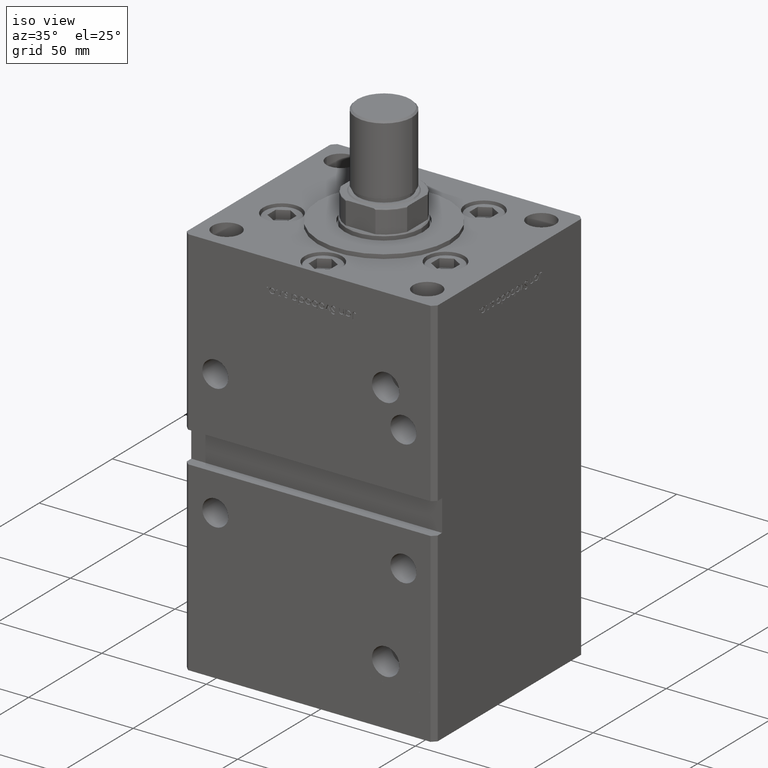
[diagram: clean part render]
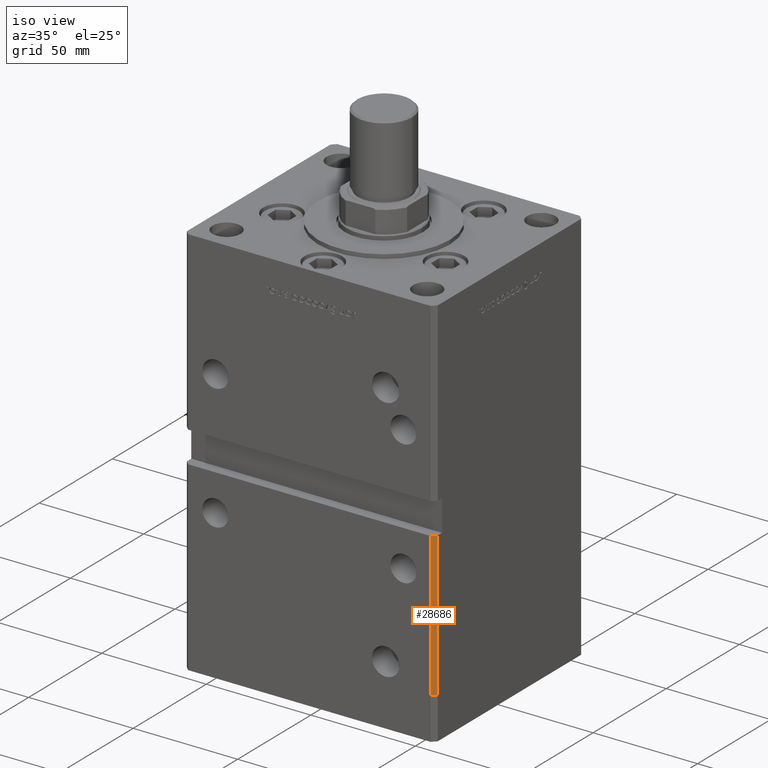
[diagram: same view with one face highlighted and labeled with its STEP entity id]
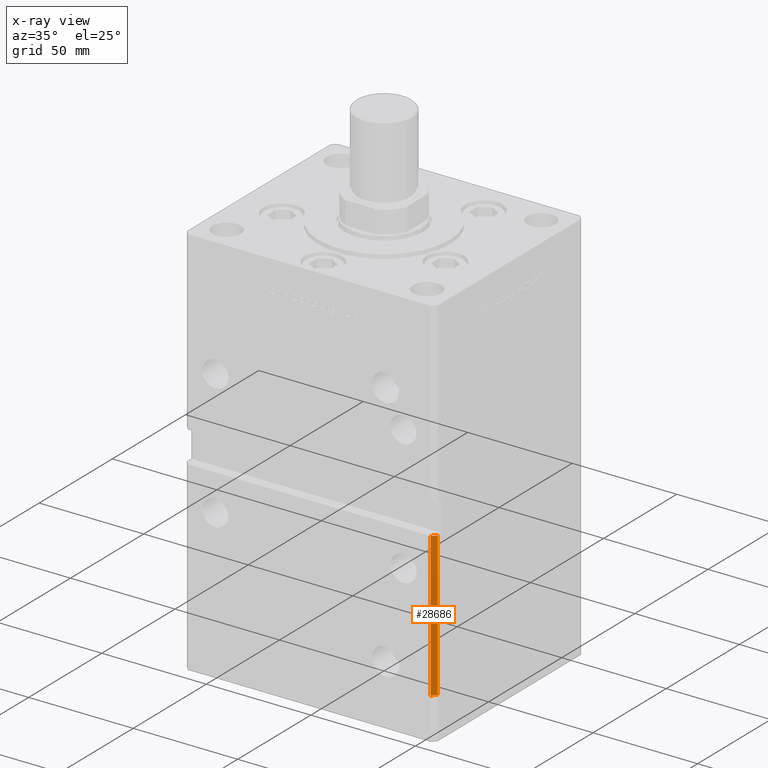
[diagram: x-ray of the same camera — body ghosted, the highlighted face saturated]
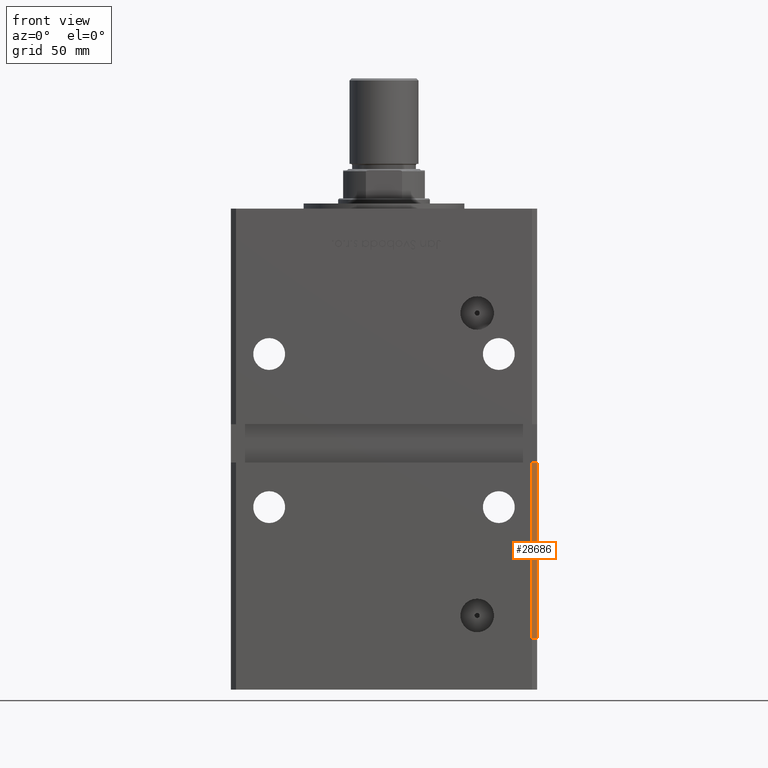
[diagram: same view with one face highlighted and labeled with its STEP entity id]
A machine part, iso view. The second image highlights one B-rep face of the part: STEP entity #28686.
The next image is the same camera in x-ray: the body ghosted, the highlighted face saturated — about 0% of this face is hidden behind the body in this view.
A second angle (front view) of the same face is appended — the face is thin or edge-on in the first view.
In plain terms, the highlighted planar face has unit normal (0.7071, -0.7071, 0).
Its self-contained STEP definition (entity closure, byte-faithful):
#221 = FACE_OUTER_BOUND ( 'NONE', #15243, .T. ) ;
#1361 = LINE ( 'NONE', #17866, #40574 ) ;
#5082 = PLANE ( 'NONE',  #31402 ) ;
#5356 = DIRECTION ( 'NONE',  ( 0.7071067811865475727, -0.7071067811865475727, 0.000000000000000000 ) ) ;
#7453 = VECTOR ( 'NONE', #45502, 1000.000000000000000 ) ;
#7967 = CARTESIAN_POINT ( 'NONE',  ( 59.99999999999998579, -48.99999999999998579, 68.99999999999998579 ) ) ;
#8260 = VECTOR ( 'NONE', #24466, 1000.000000000000114 ) ;
#8437 = CARTESIAN_POINT ( 'NONE',  ( 59.99999999999998579, -48.99999999999998579, 0.000000000000000000 ) ) ;
#15243 = EDGE_LOOP ( 'NONE', ( #41385, #20270, #38624, #52015 ) ) ;
#15804 = VERTEX_POINT ( 'NONE', #45321 ) ;
#17529 = CARTESIAN_POINT ( 'NONE',  ( 59.99999999999998579, -48.99999999999998579, 148.5000000000000000 ) ) ;
#17866 = CARTESIAN_POINT ( 'NONE',  ( 59.99999999999998579, -48.99999999999998579, 0.000000000000000000 ) ) ;
#20165 = VERTEX_POINT ( 'NONE', #38851 ) ;
#20270 = ORIENTED_EDGE ( 'NONE', *, *, #33870, .T. ) ;
#24466 = DIRECTION ( 'NONE',  ( 0.7071067811865474617, 0.7071067811865474617, 0.000000000000000000 ) ) ;
#28548 = LINE ( 'NONE', #7967, #8260 ) ;
#28686 = ADVANCED_FACE ( 'NONE', ( #221 ), #5082, .T. ) ;
#29029 = CARTESIAN_POINT ( 'NONE',  ( 57.99999999999997868, -50.99999999999999289, 148.5000000000000000 ) ) ;
#31402 = AXIS2_PLACEMENT_3D ( 'NONE', #17529, #5356, #34039 ) ;
#32887 = EDGE_CURVE ( 'NONE', #53211, #20165, #28548, .T. ) ;
#33870 = EDGE_CURVE ( 'NONE', #53211, #15804, #53348, .T. ) ;
#34039 = DIRECTION ( 'NONE',  ( 0.7071067811865474617, 0.7071067811865474617, 0.000000000000000000 ) ) ;
#36270 = CARTESIAN_POINT ( 'NONE',  ( 57.99999999999997868, -50.99999999999999289, 68.99999999999998579 ) ) ;
#38624 = ORIENTED_EDGE ( 'NONE', *, *, #48315, .F. ) ;
#38851 = CARTESIAN_POINT ( 'NONE',  ( 59.99999999999998579, -48.99999999999998579, 68.99999999999998579 ) ) ;
#40574 = VECTOR ( 'NONE', #42738, 1000.000000000000114 ) ;
#41385 = ORIENTED_EDGE ( 'NONE', *, *, #32887, .F. ) ;
#41442 = VERTEX_POINT ( 'NONE', #8437 ) ;
#42003 = LINE ( 'NONE', #49824, #42383 ) ;
#42383 = VECTOR ( 'NONE', #48585, 1000.000000000000000 ) ;
#42738 = DIRECTION ( 'NONE',  ( -0.7071067811865474617, -0.7071067811865474617, 0.000000000000000000 ) ) ;
#45321 = CARTESIAN_POINT ( 'NONE',  ( 57.99999999999997868, -50.99999999999999289, 0.000000000000000000 ) ) ;
#45502 = DIRECTION ( 'NONE',  ( -0.000000000000000000, -0.000000000000000000, -1.000000000000000000 ) ) ;
#48315 = EDGE_CURVE ( 'NONE', #41442, #15804, #1361, .T. ) ;
#48585 = DIRECTION ( 'NONE',  ( -0.000000000000000000, -0.000000000000000000, -1.000000000000000000 ) ) ;
#49824 = CARTESIAN_POINT ( 'NONE',  ( 59.99999999999998579, -48.99999999999998579, 148.5000000000000000 ) ) ;
#51526 = EDGE_CURVE ( 'NONE', #20165, #41442, #42003, .T. ) ;
#52015 = ORIENTED_EDGE ( 'NONE', *, *, #51526, .F. ) ;
#53211 = VERTEX_POINT ( 'NONE', #36270 ) ;
#53348 = LINE ( 'NONE', #29029, #7453 ) ;